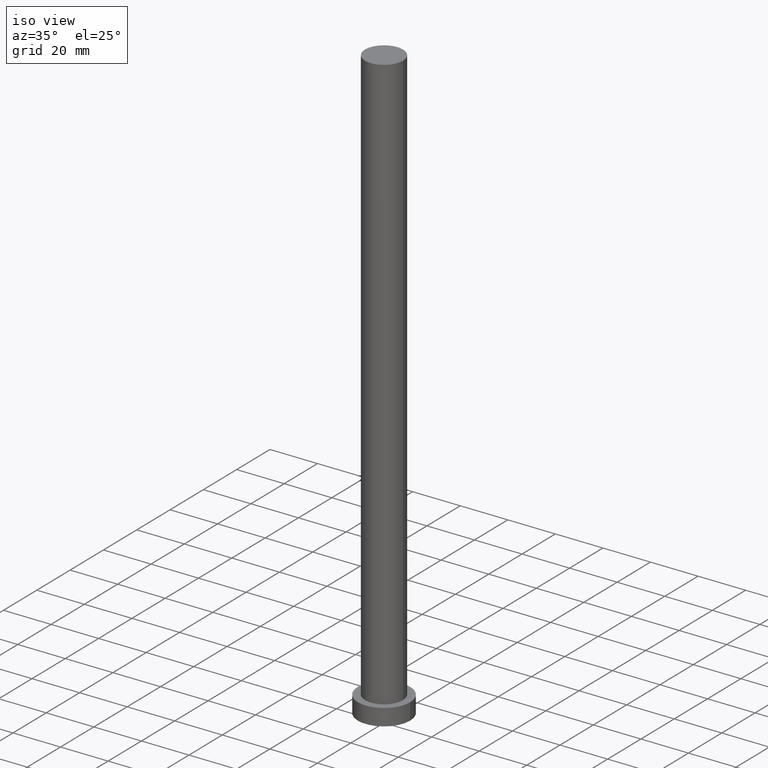
[diagram: clean part render]
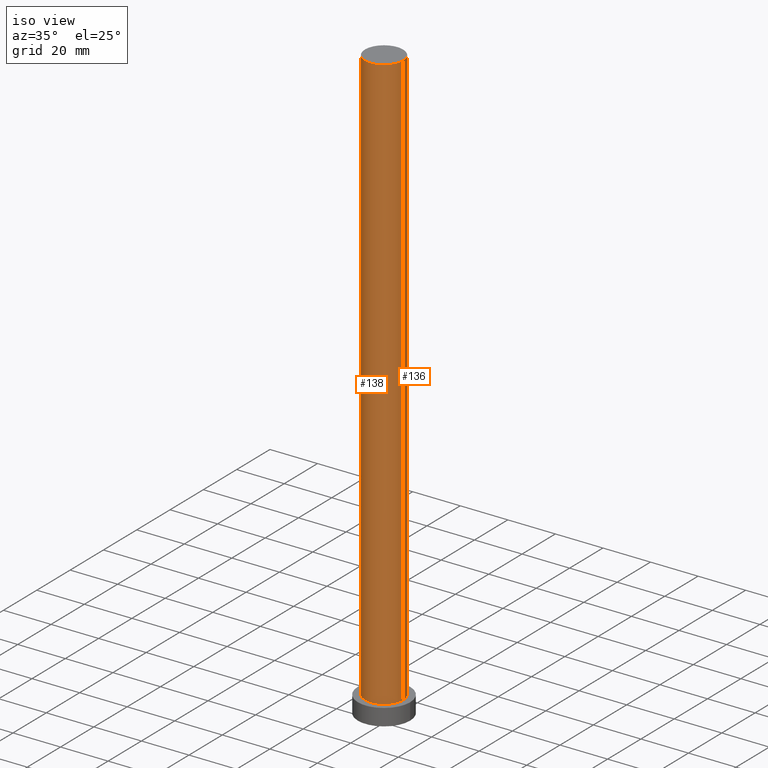
[diagram: same view with one multi-face feature highlighted, each face labeled with its STEP entity id]
A machine part, iso view. The highlighted faces form ONE feature: a constant-radius fillet chain: 2 tangent blend faces with common blend radius 8 mm. The faces share edges in the B-rep.
Their STEP definitions:
[1] entity #138 (Cylinder):
#17 = CARTESIAN_POINT ( 'NONE',  ( 8.000000000000000000, 9.797174393178825657E-16, 7.000000000000000000 ) ) ;
#18 = VERTEX_POINT ( 'NONE', #191 ) ;
#19 = DIRECTION ( 'NONE',  ( 0.000000000000000000, 0.000000000000000000, 1.000000000000000000 ) ) ;
#21 = VERTEX_POINT ( 'NONE', #207 ) ;
#23 = CARTESIAN_POINT ( 'NONE',  ( -8.000000000000000000, 0.000000000000000000, 250.0000000000000000 ) ) ;
#25 = CYLINDRICAL_SURFACE ( 'NONE', #116, 8.000000000000000000 ) ;
#32 = ORIENTED_EDGE ( 'NONE', *, *, #178, .F. ) ;
#35 = DIRECTION ( 'NONE',  ( -0.000000000000000000, -0.000000000000000000, -1.000000000000000000 ) ) ;
#37 = DIRECTION ( 'NONE',  ( 0.000000000000000000, 0.000000000000000000, 1.000000000000000000 ) ) ;
#39 = CARTESIAN_POINT ( 'NONE',  ( 0.000000000000000000, 0.000000000000000000, 250.0000000000000000 ) ) ;
#55 = VECTOR ( 'NONE', #35, 1000.000000000000000 ) ;
#81 = CARTESIAN_POINT ( 'NONE',  ( 0.000000000000000000, 0.000000000000000000, 7.000000000000000000 ) ) ;
#83 = DIRECTION ( 'NONE',  ( -0.000000000000000000, -0.000000000000000000, -1.000000000000000000 ) ) ;
#99 = DIRECTION ( 'NONE',  ( 1.000000000000000000, 0.000000000000000000, 0.000000000000000000 ) ) ;
#100 = VERTEX_POINT ( 'NONE', #122 ) ;
#105 = EDGE_LOOP ( 'NONE', ( #32, #241, #129, #252 ) ) ;
#113 = EDGE_CURVE ( 'NONE', #21, #18, #253, .T. ) ;
#116 = AXIS2_PLACEMENT_3D ( 'NONE', #39, #83, #215 ) ;
#122 = CARTESIAN_POINT ( 'NONE',  ( -8.000000000000000000, 0.000000000000000000, 7.000000000000000000 ) ) ;
#129 = ORIENTED_EDGE ( 'NONE', *, *, #233, .T. ) ;
#138 = ADVANCED_FACE ( 'NONE', ( #250 ), #25, .T. ) ;
#142 = CARTESIAN_POINT ( 'NONE',  ( 0.000000000000000000, 0.000000000000000000, 250.0000000000000000 ) ) ;
#155 = VECTOR ( 'NONE', #211, 1000.000000000000000 ) ;
#160 = DIRECTION ( 'NONE',  ( 1.000000000000000000, 0.000000000000000000, 0.000000000000000000 ) ) ;
#163 = LINE ( 'NONE', #177, #55 ) ;
#177 = CARTESIAN_POINT ( 'NONE',  ( 8.000000000000000000, 9.797174393178825657E-16, 250.0000000000000000 ) ) ;
#178 = EDGE_CURVE ( 'NONE', #18, #205, #163, .T. ) ;
#190 = AXIS2_PLACEMENT_3D ( 'NONE', #142, #19, #99 ) ;
#191 = CARTESIAN_POINT ( 'NONE',  ( 8.000000000000000000, 9.797174393178825657E-16, 250.0000000000000000 ) ) ;
#195 = CIRCLE ( 'NONE', #237, 8.000000000000000000 ) ;
#202 = LINE ( 'NONE', #23, #155 ) ;
#205 = VERTEX_POINT ( 'NONE', #17 ) ;
#207 = CARTESIAN_POINT ( 'NONE',  ( -8.000000000000000000, 0.000000000000000000, 250.0000000000000000 ) ) ;
#211 = DIRECTION ( 'NONE',  ( -0.000000000000000000, -0.000000000000000000, -1.000000000000000000 ) ) ;
#215 = DIRECTION ( 'NONE',  ( -1.000000000000000000, 0.000000000000000000, 0.000000000000000000 ) ) ;
#228 = EDGE_CURVE ( 'NONE', #100, #205, #195, .T. ) ;
#233 = EDGE_CURVE ( 'NONE', #21, #100, #202, .T. ) ;
#237 = AXIS2_PLACEMENT_3D ( 'NONE', #81, #37, #160 ) ;
#241 = ORIENTED_EDGE ( 'NONE', *, *, #113, .F. ) ;
#250 = FACE_OUTER_BOUND ( 'NONE', #105, .T. ) ;
#252 = ORIENTED_EDGE ( 'NONE', *, *, #228, .T. ) ;
#253 = CIRCLE ( 'NONE', #190, 8.000000000000000000 ) ;
[2] entity #136 (Cylinder):
#17 = CARTESIAN_POINT ( 'NONE',  ( 8.000000000000000000, 9.797174393178825657E-16, 7.000000000000000000 ) ) ;
#18 = VERTEX_POINT ( 'NONE', #191 ) ;
#21 = VERTEX_POINT ( 'NONE', #207 ) ;
#23 = CARTESIAN_POINT ( 'NONE',  ( -8.000000000000000000, 0.000000000000000000, 250.0000000000000000 ) ) ;
#35 = DIRECTION ( 'NONE',  ( -0.000000000000000000, -0.000000000000000000, -1.000000000000000000 ) ) ;
#40 = FACE_OUTER_BOUND ( 'NONE', #200, .T. ) ;
#55 = VECTOR ( 'NONE', #35, 1000.000000000000000 ) ;
#60 = DIRECTION ( 'NONE',  ( -1.000000000000000000, 0.000000000000000000, 0.000000000000000000 ) ) ;
#62 = DIRECTION ( 'NONE',  ( 1.000000000000000000, 0.000000000000000000, 0.000000000000000000 ) ) ;
#80 = AXIS2_PLACEMENT_3D ( 'NONE', #144, #254, #62 ) ;
#96 = CIRCLE ( 'NONE', #156, 8.000000000000000000 ) ;
#100 = VERTEX_POINT ( 'NONE', #122 ) ;
#101 = DIRECTION ( 'NONE',  ( 1.000000000000000000, 0.000000000000000000, 0.000000000000000000 ) ) ;
#112 = ORIENTED_EDGE ( 'NONE', *, *, #178, .T. ) ;
#121 = AXIS2_PLACEMENT_3D ( 'NONE', #235, #203, #60 ) ;
#122 = CARTESIAN_POINT ( 'NONE',  ( -8.000000000000000000, 0.000000000000000000, 7.000000000000000000 ) ) ;
#136 = ADVANCED_FACE ( 'NONE', ( #40 ), #176, .T. ) ;
#144 = CARTESIAN_POINT ( 'NONE',  ( 0.000000000000000000, 0.000000000000000000, 7.000000000000000000 ) ) ;
#147 = CIRCLE ( 'NONE', #80, 8.000000000000000000 ) ;
#155 = VECTOR ( 'NONE', #211, 1000.000000000000000 ) ;
#156 = AXIS2_PLACEMENT_3D ( 'NONE', #161, #180, #101 ) ;
#161 = CARTESIAN_POINT ( 'NONE',  ( 0.000000000000000000, 0.000000000000000000, 250.0000000000000000 ) ) ;
#163 = LINE ( 'NONE', #177, #55 ) ;
#169 = EDGE_CURVE ( 'NONE', #18, #21, #96, .T. ) ;
#176 = CYLINDRICAL_SURFACE ( 'NONE', #121, 8.000000000000000000 ) ;
#177 = CARTESIAN_POINT ( 'NONE',  ( 8.000000000000000000, 9.797174393178825657E-16, 250.0000000000000000 ) ) ;
#178 = EDGE_CURVE ( 'NONE', #18, #205, #163, .T. ) ;
#180 = DIRECTION ( 'NONE',  ( 0.000000000000000000, 0.000000000000000000, 1.000000000000000000 ) ) ;
#191 = CARTESIAN_POINT ( 'NONE',  ( 8.000000000000000000, 9.797174393178825657E-16, 250.0000000000000000 ) ) ;
#199 = ORIENTED_EDGE ( 'NONE', *, *, #169, .F. ) ;
#200 = EDGE_LOOP ( 'NONE', ( #199, #112, #223, #222 ) ) ;
#202 = LINE ( 'NONE', #23, #155 ) ;
#203 = DIRECTION ( 'NONE',  ( -0.000000000000000000, -0.000000000000000000, -1.000000000000000000 ) ) ;
#205 = VERTEX_POINT ( 'NONE', #17 ) ;
#207 = CARTESIAN_POINT ( 'NONE',  ( -8.000000000000000000, 0.000000000000000000, 250.0000000000000000 ) ) ;
#211 = DIRECTION ( 'NONE',  ( -0.000000000000000000, -0.000000000000000000, -1.000000000000000000 ) ) ;
#213 = EDGE_CURVE ( 'NONE', #205, #100, #147, .T. ) ;
#222 = ORIENTED_EDGE ( 'NONE', *, *, #233, .F. ) ;
#223 = ORIENTED_EDGE ( 'NONE', *, *, #213, .T. ) ;
#233 = EDGE_CURVE ( 'NONE', #21, #100, #202, .T. ) ;
#235 = CARTESIAN_POINT ( 'NONE',  ( 0.000000000000000000, 0.000000000000000000, 250.0000000000000000 ) ) ;
#254 = DIRECTION ( 'NONE',  ( 0.000000000000000000, 0.000000000000000000, 1.000000000000000000 ) ) ;